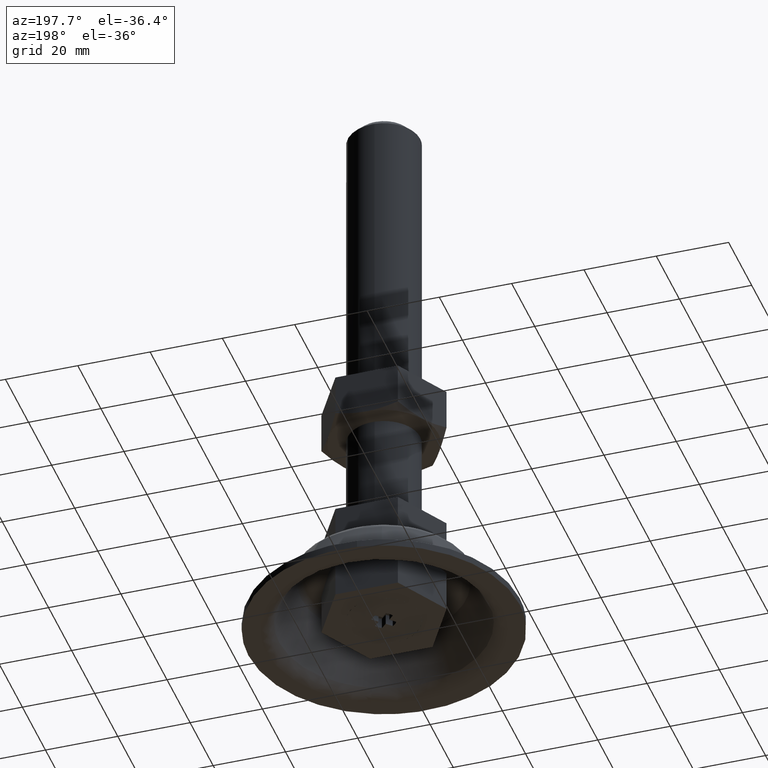
[diagram: clean part render]
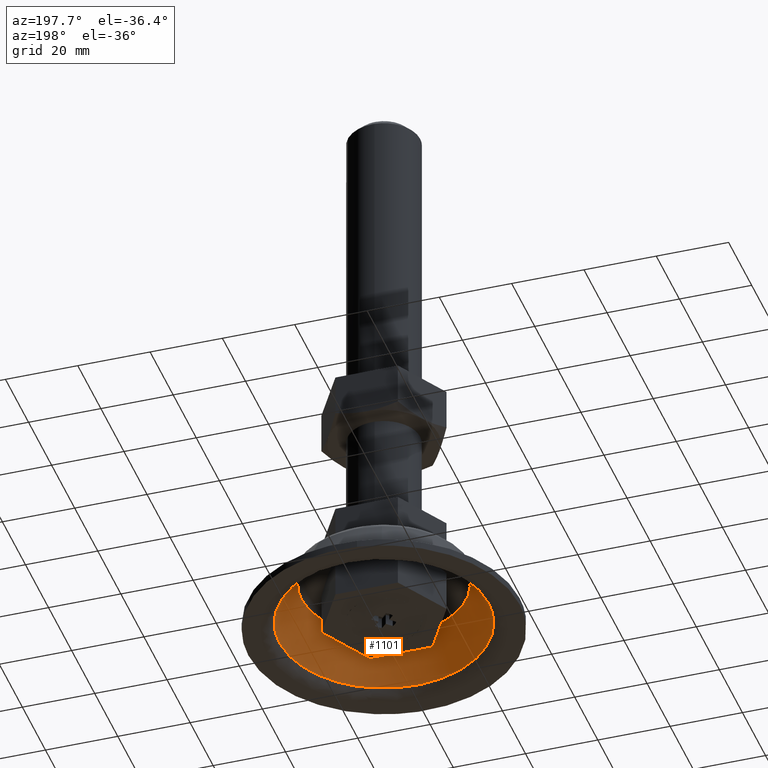
[diagram: same view with one face highlighted and labeled with its STEP entity id]
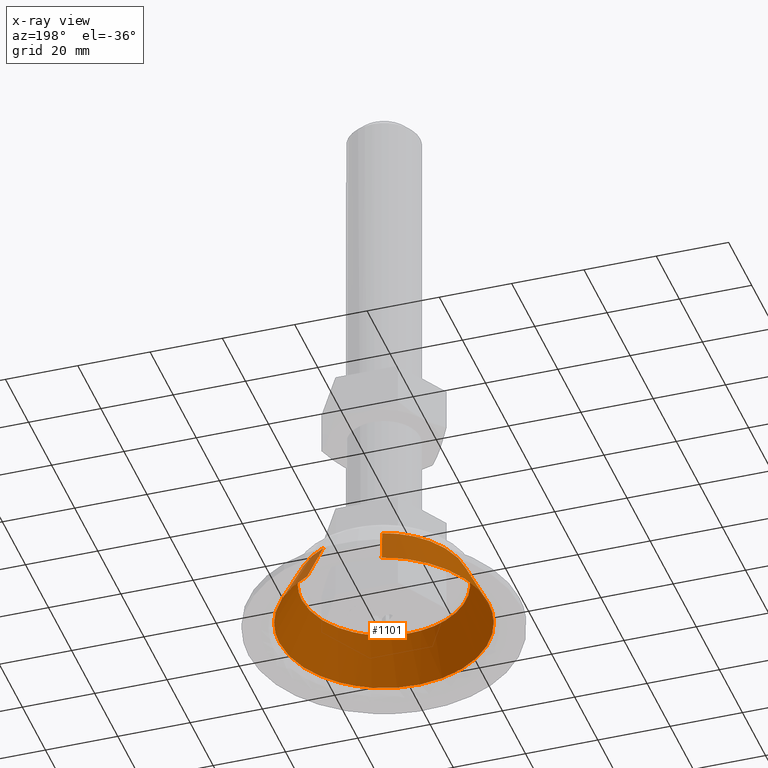
[diagram: x-ray of the same camera — body ghosted, the highlighted face saturated]
A machine part, auxiliary view. The second image highlights one B-rep face of the part: STEP entity #1101.
The next image is the same camera in x-ray: the body ghosted, the highlighted face saturated — about 0% of this face is hidden behind the body in this view.
In plain terms, the highlighted face is a freeform B-spline surface patch.
Its self-contained STEP definition (entity closure, byte-faithful):
#905=CARTESIAN_POINT('',(10.110392901469293,20.188616368184757,15.197585373584049));
#906=CARTESIAN_POINT('',(18.867386054683859,15.803142901365087,15.197585373584044));
#907=CARTESIAN_POINT('',(21.648957966407600,6.412713501516758,15.197585373584049));
#908=CARTESIAN_POINT('',(28.061671467924366,-15.236244464890849,15.197585373584046));
#909=CARTESIAN_POINT('',(6.412713501516758,-21.648957966407600,15.197585373584049));
#910=CARTESIAN_POINT('',(-15.236244464890849,-28.061671467924366,15.197585373584046));
#911=CARTESIAN_POINT('',(-21.648957966407600,-6.412713501516758,15.197585373584049));
#912=CARTESIAN_POINT('',(-28.061671467924366,15.236244464890849,15.197585373584046));
#913=CARTESIAN_POINT('',(-6.412713501516758,21.648957966407600,15.197585373584049));
#914=CARTESIAN_POINT('',(13.031142813494672,26.020822896253566,1.913037094380700));
#915=CARTESIAN_POINT('',(24.317907779844337,20.368447997686189,1.913037094380700));
#916=CARTESIAN_POINT('',(27.903036585512201,8.265255987049351,1.913037094380700));
#917=CARTESIAN_POINT('',(36.168292572561562,-19.637780598462850,1.913037094380699));
#918=CARTESIAN_POINT('',(8.265255987049351,-27.903036585512201,1.913037094380700));
#919=CARTESIAN_POINT('',(-19.637780598462850,-36.168292572561562,1.913037094380699));
#920=CARTESIAN_POINT('',(-27.903036585512201,-8.265255987049351,1.913037094380700));
#921=CARTESIAN_POINT('',(-36.168292572561562,19.637780598462850,1.913037094380699));
#922=CARTESIAN_POINT('',(-8.265255987049351,27.903036585512201,1.913037094380700));
#930=(BOUNDED_SURFACE()B_SPLINE_SURFACE(2,1,((#905,#914),(#906,#915),(#907,#916),(#908,#917),(#909,#918),(#910,#919),(#911,#920),(#912,#921),(#913,#922)),.UNSPECIFIED.,.F.,.F.,.U.)B_SPLINE_SURFACE_WITH_KNOTS((3,2,2,2,3),(2,2),(0.0,25.072760593874651,73.289607889787419,121.506455185700200,169.723302481612990),(0.0,14.799480937422411),.UNSPECIFIED.)GEOMETRIC_REPRESENTATION_ITEM()RATIONAL_B_SPLINE_SURFACE(((0.853787705168325,0.853787705168325),(0.847695526217005,0.847695526217005),(1.0,1.0),(0.707106781186548,0.707106781186548),(1.0,1.0),(0.707106781186548,0.707106781186548),(1.0,1.0),(0.707106781186548,0.707106781186548),(1.0,1.0)))REPRESENTATION_ITEM('')SURFACE());
#931=CARTESIAN_POINT('',(10.179893196969120,20.327395821665078,14.881474765779380));
#932=VERTEX_POINT('',#931);
#933=CARTESIAN_POINT('',(20.320561259555848,10.193529147533150,14.881474766107470));
#934=VERTEX_POINT('',#933);
#935=CARTESIAN_POINT('',(10.179893196969115,20.327395821665082,14.881474765779384));
#936=CARTESIAN_POINT('',(16.933730894006569,16.945096041079079,14.881474765897213));
#937=CARTESIAN_POINT('',(20.320561259555856,10.193529147533154,14.881474766107466));
#945=(BOUNDED_CURVE()B_SPLINE_CURVE(2,(#935,#936,#937),.UNSPECIFIED.,.F.,.U.)B_SPLINE_CURVE_WITH_KNOTS((3,3),(0.326127052926041,0.423769062115129),.UNSPECIFIED.)CURVE()GEOMETRIC_REPRESENTATION_ITEM()RATIONAL_B_SPLINE_CURVE((0.875940413896257,0.831213953432183,0.875845342762182))REPRESENTATION_ITEM(''));
#946=EDGE_CURVE('',#932,#934,#945,.T.);
#947=ORIENTED_EDGE('',*,*,#946,.F.);
#948=CARTESIAN_POINT('',(12.959905010496531,25.878573955981889,2.237050468273677));
#949=VERTEX_POINT('',#948);
#950=CARTESIAN_POINT('',(10.179893196969120,20.327395821665078,14.881474765779380));
#951=CARTESIAN_POINT('',(12.959905010496531,25.878573955981889,2.237050468273677));
#952=QUASI_UNIFORM_CURVE('',1,(#950,#951),.UNSPECIFIED.,.F.,.U.);
#953=EDGE_CURVE('',#932,#949,#952,.T.);
#954=ORIENTED_EDGE('',*,*,#953,.T.);
#955=CARTESIAN_POINT('',(25.704757550956899,13.301322007937930,2.237050467044198));
#956=VERTEX_POINT('',#955);
#957=CARTESIAN_POINT('',(12.959905010496529,25.878573955981885,2.237050468273677));
#958=CARTESIAN_POINT('',(21.377962305110305,21.662838456336960,2.237050467858008));
#959=CARTESIAN_POINT('',(25.704757550956902,13.301322007937930,2.237050467044197));
#967=(BOUNDED_CURVE()B_SPLINE_CURVE(2,(#957,#958,#959),.UNSPECIFIED.,.F.,.U.)B_SPLINE_CURVE_WITH_KNOTS((3,3),(0.326127052924367,0.421825371002359),.UNSPECIFIED.)CURVE()GEOMETRIC_REPRESENTATION_ITEM()RATIONAL_B_SPLINE_CURVE((0.875940413897791,0.832104291764627,0.874103860135521))REPRESENTATION_ITEM(''));
#968=EDGE_CURVE('',#949,#956,#967,.T.);
#969=ORIENTED_EDGE('',*,*,#968,.T.);
#970=CARTESIAN_POINT('',(28.942351802662198,0.0,2.237050468566510));
#971=VERTEX_POINT('',#970);
#972=CARTESIAN_POINT('',(25.704757550956895,13.301322007937928,2.237050467044198));
#973=CARTESIAN_POINT('',(28.942351802662202,7.044682610750303,2.237050468566510));
#974=CARTESIAN_POINT('',(28.942351802662198,0.0,2.237050468566510));
#982=(BOUNDED_CURVE()B_SPLINE_CURVE(2,(#972,#973,#974),.UNSPECIFIED.,.F.,.U.)B_SPLINE_CURVE_WITH_KNOTS((3,3),(0.421825371002359,0.500000000000000),.UNSPECIFIED.)CURVE()GEOMETRIC_REPRESENTATION_ITEM()RATIONAL_B_SPLINE_CURVE((0.874103860135521,0.908412725133334,1.0))REPRESENTATION_ITEM(''));
#983=EDGE_CURVE('',#956,#971,#982,.T.);
#984=ORIENTED_EDGE('',*,*,#983,.T.);
#985=CARTESIAN_POINT('',(11.809436057844909,-26.423416658457040,2.237050467099675));
#986=VERTEX_POINT('',#985);
#987=CARTESIAN_POINT('',(28.942351802662198,0.0,2.237050468566510));
#988=CARTESIAN_POINT('',(28.942351802662206,-18.766190660368917,2.237050468566510));
#989=CARTESIAN_POINT('',(11.809436057844907,-26.423416658457040,2.237050467099675));
#997=(BOUNDED_CURVE()B_SPLINE_CURVE(2,(#987,#988,#989),.UNSPECIFIED.,.F.,.U.)B_SPLINE_CURVE_WITH_KNOTS((3,3),(0.500000000000000,0.680709483576988),.UNSPECIFIED.)CURVE()GEOMETRIC_REPRESENTATION_ITEM()RATIONAL_B_SPLINE_CURVE((1.0,0.788285670740076,0.882641638331427))REPRESENTATION_ITEM(''));
#998=EDGE_CURVE('',#971,#986,#997,.T.);
#999=ORIENTED_EDGE('',*,*,#998,.T.);
#1000=CARTESIAN_POINT('',(-28.942351802662198,0.0,2.237050468566510));
#1001=VERTEX_POINT('',#1000);
#1002=CARTESIAN_POINT('',(11.809436057844914,-26.423416658457047,2.237050467099676));
#1003=CARTESIAN_POINT('',(6.173360588600136,-28.942351802662195,2.237050468566509));
#1004=CARTESIAN_POINT('',(0.0,-28.942351802662198,2.237050468566510));
#1005=CARTESIAN_POINT('',(-28.942351802662202,-28.942351802662202,2.237050468566510));
#1006=CARTESIAN_POINT('',(-28.942351802662198,0.0,2.237050468566510));
#1014=(BOUNDED_CURVE()B_SPLINE_CURVE(2,(#1002,#1003,#1004,#1005,#1006),.UNSPECIFIED.,.F.,.U.)B_SPLINE_CURVE_WITH_KNOTS((3,2,3),(0.680709483576989,0.750000000000000,1.0),.UNSPECIFIED.)CURVE()GEOMETRIC_REPRESENTATION_ITEM()RATIONAL_B_SPLINE_CURVE((0.882641638331428,0.918821110446471,1.0,0.707106781186548,1.0))REPRESENTATION_ITEM(''));
#1015=EDGE_CURVE('',#986,#1001,#1014,.T.);
#1016=ORIENTED_EDGE('',*,*,#1015,.T.);
#1017=CARTESIAN_POINT('',(-8.220072023803244,27.750498081884771,2.237050468561610));
#1018=VERTEX_POINT('',#1017);
#1019=CARTESIAN_POINT('',(-28.942351802662198,0.0,2.237050468566510));
#1020=CARTESIAN_POINT('',(-28.942351802662198,21.612279164960121,2.237050468566511));
#1021=CARTESIAN_POINT('',(-8.220072023803244,27.750498081884771,2.237050468561610));
#1029=(BOUNDED_CURVE()B_SPLINE_CURVE(2,(#1019,#1020,#1021),.UNSPECIFIED.,.F.,.U.)B_SPLINE_CURVE_WITH_KNOTS((3,3),(0.0,0.201641517065158),.UNSPECIFIED.)CURVE()GEOMETRIC_REPRESENTATION_ITEM()RATIONAL_B_SPLINE_CURVE((1.0,0.763762268081433,0.908607213379601))REPRESENTATION_ITEM(''));
#1030=EDGE_CURVE('',#1001,#1018,#1029,.T.);
#1031=ORIENTED_EDGE('',*,*,#1030,.T.);
#1032=CARTESIAN_POINT('',(-6.456795416884743,21.797776018178990,14.881474765693889));
#1033=VERTEX_POINT('',#1032);
#1034=CARTESIAN_POINT('',(-6.456795416884743,21.797776018178990,14.881474765693889));
#1035=CARTESIAN_POINT('',(-8.220072023803244,27.750498081884771,2.237050468561610));
#1036=QUASI_UNIFORM_CURVE('',1,(#1034,#1035),.UNSPECIFIED.,.F.,.U.);
#1037=EDGE_CURVE('',#1033,#1018,#1036,.T.);
#1038=ORIENTED_EDGE('',*,*,#1037,.F.);
#1039=CARTESIAN_POINT('',(-22.733966798464550,0.0,14.881474765716940));
#1040=VERTEX_POINT('',#1039);
#1041=CARTESIAN_POINT('',(-22.733966798464550,0.0,14.881474765716940));
#1042=CARTESIAN_POINT('',(-22.733966798464554,16.976258194924604,14.881474765716934));
#1043=CARTESIAN_POINT('',(-6.456795416884743,21.797776018178990,14.881474765693888));
#1051=(BOUNDED_CURVE()B_SPLINE_CURVE(2,(#1041,#1042,#1043),.UNSPECIFIED.,.F.,.U.)B_SPLINE_CURVE_WITH_KNOTS((3,3),(0.0,0.201641517063585),.UNSPECIFIED.)CURVE()GEOMETRIC_REPRESENTATION_ITEM()RATIONAL_B_SPLINE_CURVE((1.0,0.763762268083275,0.908607213377342))REPRESENTATION_ITEM(''));
#1052=EDGE_CURVE('',#1040,#1033,#1051,.T.);
#1053=ORIENTED_EDGE('',*,*,#1052,.F.);
#1054=CARTESIAN_POINT('',(10.193529147540350,-20.320561259578380,14.881474766059890));
#1055=VERTEX_POINT('',#1054);
#1056=CARTESIAN_POINT('',(10.193529147540353,-20.320561259578387,14.881474766059890));
#1057=CARTESIAN_POINT('',(5.382461814208695,-22.733966798464543,14.881474765716947));
#1058=CARTESIAN_POINT('',(0.0,-22.733966798464550,14.881474765716940));
#1059=CARTESIAN_POINT('',(-22.733966798464557,-22.733966798464557,14.881474765716945));
#1060=CARTESIAN_POINT('',(-22.733966798464550,0.0,14.881474765716940));
#1068=(BOUNDED_CURVE()B_SPLINE_CURVE(2,(#1056,#1057,#1058,#1059,#1060),.UNSPECIFIED.,.F.,.U.)B_SPLINE_CURVE_WITH_KNOTS((3,2,3),(0.673769062115180,0.750000000000000,1.0),.UNSPECIFIED.)CURVE()GEOMETRIC_REPRESENTATION_ITEM()RATIONAL_B_SPLINE_CURVE((0.875845342762228,0.910689900918986,1.0,0.707106781186547,1.0))REPRESENTATION_ITEM(''));
#1069=EDGE_CURVE('',#1055,#1040,#1068,.T.);
#1070=ORIENTED_EDGE('',*,*,#1069,.F.);
#1071=CARTESIAN_POINT('',(22.733966798464550,0.0,14.881474765716940));
#1072=VERTEX_POINT('',#1071);
#1073=CARTESIAN_POINT('',(22.733966798464550,0.0,14.881474765716940));
#1074=CARTESIAN_POINT('',(22.733966798464547,-14.029823760677036,14.881474765716936));
#1075=CARTESIAN_POINT('',(10.193529147540353,-20.320561259578376,14.881474766059888));
#1083=(BOUNDED_CURVE()B_SPLINE_CURVE(2,(#1073,#1074,#1075),.UNSPECIFIED.,.F.,.U.)B_SPLINE_CURVE_WITH_KNOTS((3,3),(0.500000000000000,0.673769062115179),.UNSPECIFIED.)CURVE()GEOMETRIC_REPRESENTATION_ITEM()RATIONAL_B_SPLINE_CURVE((1.0,0.796416880267562,0.875845342762227))REPRESENTATION_ITEM(''));
#1084=EDGE_CURVE('',#1072,#1055,#1083,.T.);
#1085=ORIENTED_EDGE('',*,*,#1084,.F.);
#1086=CARTESIAN_POINT('',(20.320561259555856,10.193529147533154,14.881474766107466));
#1087=CARTESIAN_POINT('',(22.733966798464554,5.382461814212565,14.881474765716936));
#1088=CARTESIAN_POINT('',(22.733966798464550,0.0,14.881474765716940));
#1096=(BOUNDED_CURVE()B_SPLINE_CURVE(2,(#1086,#1087,#1088),.UNSPECIFIED.,.F.,.U.)B_SPLINE_CURVE_WITH_KNOTS((3,3),(0.423769062115130,0.500000000000000),.UNSPECIFIED.)CURVE()GEOMETRIC_REPRESENTATION_ITEM()RATIONAL_B_SPLINE_CURVE((0.875845342762182,0.910689900918928,1.0))REPRESENTATION_ITEM(''));
#1097=EDGE_CURVE('',#934,#1072,#1096,.T.);
#1098=ORIENTED_EDGE('',*,*,#1097,.F.);
#1099=EDGE_LOOP('',(#947,#954,#969,#984,#999,#1016,#1031,#1038,#1053,#1070,#1085,#1098));
#1100=FACE_OUTER_BOUND('',#1099,.T.);
#1101=ADVANCED_FACE('',(#1100),#930,.F.);